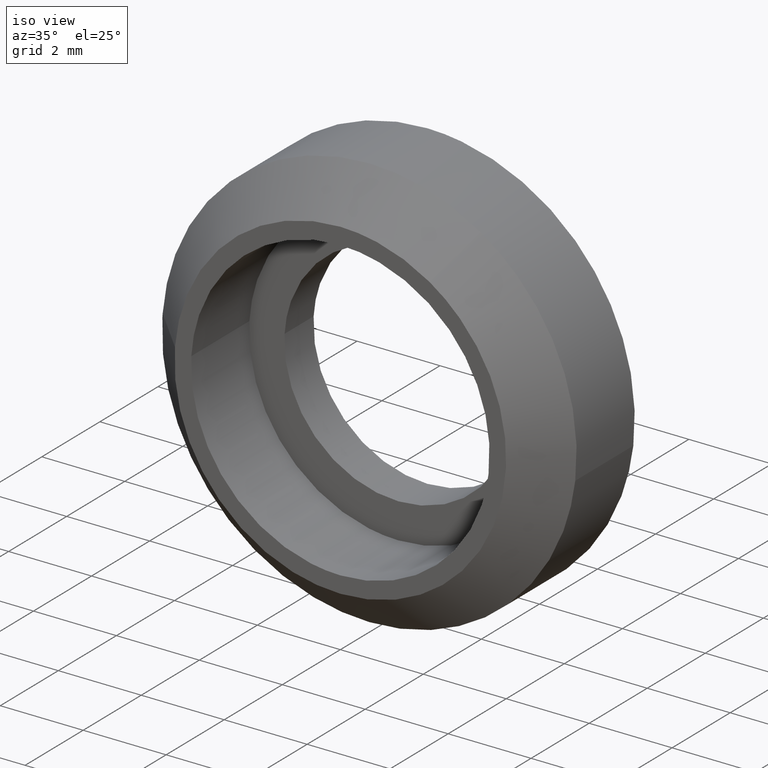
[diagram: clean part render]
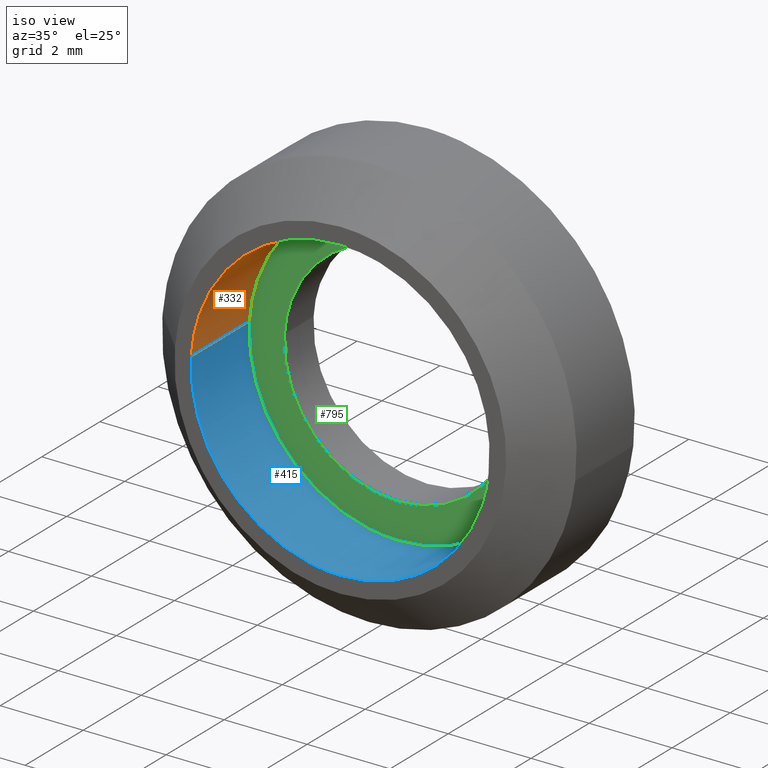
[diagram: same view with three faces highlighted in distinct colors, each labeled with its STEP entity id]
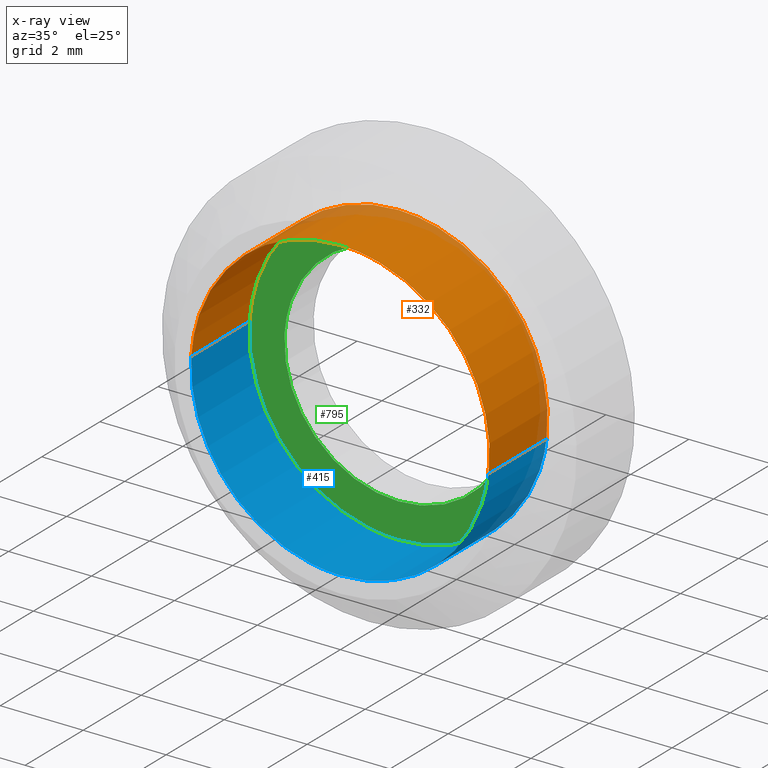
[diagram: x-ray of the same camera — body ghosted, the three highlighted faces saturated]
A machine part, iso view with three faces highlighted in distinct colors.
The next image is the same camera in x-ray (body ghosted, the three faces saturated) — at least one of them is partly hidden behind the body in this view.
Their STEP definitions:

[orange] entity #332 — the highlighted face is a freeform B-spline surface patch.
#230=CARTESIAN_POINT('',(3.574834294909198,0.050000000000000,-0.424923244764331));
#231=CARTESIAN_POINT('',(3.586995415614981,0.050000000000000,-0.322613023096720));
#232=CARTESIAN_POINT('',(3.593285274318721,0.050000000000000,-0.219774742325485));
#233=CARTESIAN_POINT('',(3.813060016644206,0.050000000000000,3.373510531993235));
#234=CARTESIAN_POINT('',(0.219774742325486,0.050000000000000,3.593285274318720));
#235=CARTESIAN_POINT('',(-3.373510531993235,0.050000000000000,3.813060016644206));
#236=CARTESIAN_POINT('',(-3.593285274318720,0.050000000000000,0.219774742325485));
#237=CARTESIAN_POINT('',(3.574834294909198,-2.051250000000001,-0.424923244764331));
#238=CARTESIAN_POINT('',(3.586995415614981,-2.051250000000000,-0.322613023096720));
#239=CARTESIAN_POINT('',(3.593285274318721,-2.051250000000000,-0.219774742325485));
#240=CARTESIAN_POINT('',(3.813060016644206,-2.051250000000001,3.373510531993235));
#241=CARTESIAN_POINT('',(0.219774742325486,-2.051250000000000,3.593285274318720));
#242=CARTESIAN_POINT('',(-3.373510531993235,-2.051250000000001,3.813060016644206));
#243=CARTESIAN_POINT('',(-3.593285274318720,-2.051250000000000,0.219774742325485));
#251=(BOUNDED_SURFACE()B_SPLINE_SURFACE(2,1,((#230,#237),(#231,#238),(#232,#239),(#233,#240),(#234,#241),(#235,#242),(#236,#243)),.UNSPECIFIED.,.F.,.F.,.U.)B_SPLINE_SURFACE_WITH_KNOTS((3,2,2,3),(2,2),(0.0,0.238587011926903,6.203262310099472,12.167937608272039),(0.0,2.101250000000000),.UNSPECIFIED.)GEOMETRIC_REPRESENTATION_ITEM()RATIONAL_B_SPLINE_SURFACE(((0.977505800795127,0.977505800795127),(0.988284271247462,0.988284271247462),(1.0,1.0),(0.707106781186548,0.707106781186548),(1.0,1.0),(0.707106781186548,0.707106781186548),(1.0,1.0)))REPRESENTATION_ITEM('')SURFACE());
#252=CARTESIAN_POINT('',(3.574834407510444,-3.545736E-015,-0.424922297459830));
#253=VERTEX_POINT('',#252);
#254=CARTESIAN_POINT('',(4.898425E-016,0.0,3.600000000000000));
#255=VERTEX_POINT('',#254);
#256=CARTESIAN_POINT('',(3.574834407510443,-3.545736E-015,-0.424922297459830));
#257=CARTESIAN_POINT('',(3.600000000000000,0.0,-0.213205873427639));
#258=CARTESIAN_POINT('',(3.600000000000001,0.0,0.0));
#259=CARTESIAN_POINT('',(3.600000000000000,0.0,3.600000000000000));
#260=CARTESIAN_POINT('',(4.898425E-016,0.0,3.600000000000000));
#268=(BOUNDED_CURVE()B_SPLINE_CURVE(2,(#256,#257,#258,#259,#260),.UNSPECIFIED.,.F.,.U.)B_SPLINE_CURVE_WITH_KNOTS((3,2,3),(0.229562563084858,0.250000000000000,0.500000000000000),.UNSPECIFIED.)CURVE()GEOMETRIC_REPRESENTATION_ITEM()RATIONAL_B_SPLINE_CURVE((0.956026929747286,0.976056053270509,1.0,0.707106781186547,1.0))REPRESENTATION_ITEM(''));
#269=EDGE_CURVE('',#253,#255,#268,.T.);
#270=ORIENTED_EDGE('',*,*,#269,.F.);
#271=CARTESIAN_POINT('',(3.574834406155133,-2.0,-0.424922308861975));
#272=VERTEX_POINT('',#271);
#273=CARTESIAN_POINT('',(3.574834407510444,-3.545736E-015,-0.424922297459830));
#274=CARTESIAN_POINT('',(3.574834406155133,-2.0,-0.424922308861975));
#275=QUASI_UNIFORM_CURVE('',1,(#273,#274),.UNSPECIFIED.,.F.,.U.);
#276=EDGE_CURVE('',#253,#272,#275,.T.);
#277=ORIENTED_EDGE('',*,*,#276,.T.);
#278=CARTESIAN_POINT('',(4.898425E-016,-2.0,3.600000000000000));
#279=VERTEX_POINT('',#278);
#280=CARTESIAN_POINT('',(3.574834406155132,-2.000000000000000,-0.424922308861975));
#281=CARTESIAN_POINT('',(3.600000000000001,-2.000000000000000,-0.213205884950325));
#282=CARTESIAN_POINT('',(3.600000000000001,-2.0,0.0));
#283=CARTESIAN_POINT('',(3.600000000000000,-2.0,3.600000000000000));
#284=CARTESIAN_POINT('',(4.898425E-016,-2.0,3.600000000000000));
#292=(BOUNDED_CURVE()B_SPLINE_CURVE(2,(#280,#281,#282,#283,#284),.UNSPECIFIED.,.F.,.U.)B_SPLINE_CURVE_WITH_KNOTS((3,2,3),(0.229562562006767,0.250000000000000,0.500000000000000),.UNSPECIFIED.)CURVE()GEOMETRIC_REPRESENTATION_ITEM()RATIONAL_B_SPLINE_CURVE((0.956026927634180,0.976056052007446,1.0,0.707106781186547,1.0))REPRESENTATION_ITEM(''));
#293=EDGE_CURVE('',#272,#279,#292,.T.);
#294=ORIENTED_EDGE('',*,*,#293,.T.);
#295=CARTESIAN_POINT('',(-3.593285493808216,-2.0,0.219771153645120));
#296=VERTEX_POINT('',#295);
#297=CARTESIAN_POINT('',(4.898425E-016,-2.0,3.600000000000000));
#298=CARTESIAN_POINT('',(-3.386545229384042,-2.000000000000000,3.600000000000000));
#299=CARTESIAN_POINT('',(-3.593285493808216,-1.999999999999999,0.219771153645120));
#307=(BOUNDED_CURVE()B_SPLINE_CURVE(2,(#297,#298,#299),.UNSPECIFIED.,.F.,.U.)B_SPLINE_CURVE_WITH_KNOTS((3,3),(0.500000000000000,0.739333134567656),.UNSPECIFIED.)CURVE()GEOMETRIC_REPRESENTATION_ITEM()RATIONAL_B_SPLINE_CURVE((1.0,0.719603791391064,0.976072411000232))REPRESENTATION_ITEM(''));
#308=EDGE_CURVE('',#279,#296,#307,.T.);
#309=ORIENTED_EDGE('',*,*,#308,.T.);
#310=CARTESIAN_POINT('',(-3.593285496484431,-7.393391E-015,0.219771109887959));
#311=VERTEX_POINT('',#310);
#312=CARTESIAN_POINT('',(-3.593285496484431,-7.393391E-015,0.219771109887959));
#313=CARTESIAN_POINT('',(-3.593285493808216,-2.0,0.219771153645120));
#314=QUASI_UNIFORM_CURVE('',1,(#312,#313),.UNSPECIFIED.,.F.,.U.);
#315=EDGE_CURVE('',#311,#296,#314,.T.);
#316=ORIENTED_EDGE('',*,*,#315,.F.);
#317=CARTESIAN_POINT('',(4.898425E-016,0.0,3.600000000000000));
#318=CARTESIAN_POINT('',(-3.386545270700687,0.0,3.600000000000001));
#319=CARTESIAN_POINT('',(-3.593285496484431,-7.393391E-015,0.219771109887959));
#327=(BOUNDED_CURVE()B_SPLINE_CURVE(2,(#317,#318,#319),.UNSPECIFIED.,.F.,.U.)B_SPLINE_CURVE_WITH_KNOTS((3,3),(0.500000000000000,0.739333136668842),.UNSPECIFIED.)CURVE()GEOMETRIC_REPRESENTATION_ITEM()RATIONAL_B_SPLINE_CURVE((1.0,0.719603788929372,0.976072415503480))REPRESENTATION_ITEM(''));
#328=EDGE_CURVE('',#255,#311,#327,.T.);
#329=ORIENTED_EDGE('',*,*,#328,.F.);
#330=EDGE_LOOP('',(#270,#277,#294,#309,#316,#329));
#331=FACE_OUTER_BOUND('',#330,.T.);
#332=ADVANCED_FACE('',(#331),#251,.F.);

[blue] entity #415 — the highlighted face is a freeform B-spline surface patch.
#252=CARTESIAN_POINT('',(3.574834407510444,-3.545736E-015,-0.424922297459830));
#253=VERTEX_POINT('',#252);
#271=CARTESIAN_POINT('',(3.574834406155133,-2.0,-0.424922308861975));
#272=VERTEX_POINT('',#271);
#273=CARTESIAN_POINT('',(3.574834407510444,-3.545736E-015,-0.424922297459830));
#274=CARTESIAN_POINT('',(3.574834406155133,-2.0,-0.424922308861975));
#275=QUASI_UNIFORM_CURVE('',1,(#273,#274),.UNSPECIFIED.,.F.,.U.);
#276=EDGE_CURVE('',#253,#272,#275,.T.);
#295=CARTESIAN_POINT('',(-3.593285493808216,-2.0,0.219771153645120));
#296=VERTEX_POINT('',#295);
#310=CARTESIAN_POINT('',(-3.593285496484431,-7.393391E-015,0.219771109887959));
#311=VERTEX_POINT('',#310);
#312=CARTESIAN_POINT('',(-3.593285496484431,-7.393391E-015,0.219771109887959));
#313=CARTESIAN_POINT('',(-3.593285493808216,-2.0,0.219771153645120));
#314=QUASI_UNIFORM_CURVE('',1,(#312,#313),.UNSPECIFIED.,.F.,.U.);
#315=EDGE_CURVE('',#311,#296,#314,.T.);
#333=CARTESIAN_POINT('',(-3.593285274318720,0.050000000000000,0.219774742325485));
#334=CARTESIAN_POINT('',(-3.813060016644205,0.050000000000000,-3.373510531993235));
#335=CARTESIAN_POINT('',(-0.219774742325485,0.050000000000000,-3.593285274318720));
#336=CARTESIAN_POINT('',(3.173556567022204,0.050000000000000,-3.800830308237098));
#337=CARTESIAN_POINT('',(3.574834294909198,0.050000000000000,-0.424923244764331));
#338=CARTESIAN_POINT('',(-3.593285274318720,-2.051250000000000,0.219774742325485));
#339=CARTESIAN_POINT('',(-3.813060016644205,-2.051250000000001,-3.373510531993235));
#340=CARTESIAN_POINT('',(-0.219774742325485,-2.051250000000000,-3.593285274318720));
#341=CARTESIAN_POINT('',(3.173556567022204,-2.051250000000001,-3.800830308237098));
#342=CARTESIAN_POINT('',(3.574834294909198,-2.051250000000001,-0.424923244764331));
#350=(BOUNDED_SURFACE()B_SPLINE_SURFACE(2,1,((#333,#338),(#334,#339),(#335,#340),(#336,#341),(#337,#342)),.UNSPECIFIED.,.F.,.F.,.U.)B_SPLINE_SURFACE_WITH_KNOTS((3,2,3),(2,2),(0.0,5.964675298172567,11.690763584418230),(0.0,2.101250000000000),.UNSPECIFIED.)GEOMETRIC_REPRESENTATION_ITEM()RATIONAL_B_SPLINE_SURFACE(((1.0,1.0),(0.707106781186548,0.707106781186548),(1.0,1.0),(0.718822509939086,0.718822509939086),(0.977505800795127,0.977505800795127)))REPRESENTATION_ITEM('')SURFACE());
#351=CARTESIAN_POINT('',(4.898425E-016,0.0,-3.600000000000000));
#352=VERTEX_POINT('',#351);
#353=CARTESIAN_POINT('',(4.898425E-016,0.0,-3.600000000000000));
#354=CARTESIAN_POINT('',(3.197429999944082,0.0,-3.600000000000001));
#355=CARTESIAN_POINT('',(3.574834407510444,-3.545736E-015,-0.424922297459830));
#363=(BOUNDED_CURVE()B_SPLINE_CURVE(2,(#353,#354,#355),.UNSPECIFIED.,.F.,.U.)B_SPLINE_CURVE_WITH_KNOTS((3,3),(0.0,0.229562563084858),.UNSPECIFIED.)CURVE()GEOMETRIC_REPRESENTATION_ITEM()RATIONAL_B_SPLINE_CURVE((1.0,0.731050727916038,0.956026929747286))REPRESENTATION_ITEM(''));
#364=EDGE_CURVE('',#352,#253,#363,.T.);
#365=ORIENTED_EDGE('',*,*,#364,.F.);
#366=CARTESIAN_POINT('',(-3.593285496484431,-7.393391E-015,0.219771109887959));
#367=CARTESIAN_POINT('',(-3.600000000000000,0.0,0.109988126563798));
#368=CARTESIAN_POINT('',(-3.600000000000000,0.0,0.0));
#369=CARTESIAN_POINT('',(-3.600000000000000,0.0,-3.600000000000000));
#370=CARTESIAN_POINT('',(4.898425E-016,0.0,-3.600000000000000));
#378=(BOUNDED_CURVE()B_SPLINE_CURVE(2,(#366,#367,#368,#369,#370),.UNSPECIFIED.,.F.,.U.)B_SPLINE_CURVE_WITH_KNOTS((3,2,3),(0.739333136668842,0.750000000000000,1.0),.UNSPECIFIED.)CURVE()GEOMETRIC_REPRESENTATION_ITEM()RATIONAL_B_SPLINE_CURVE((0.976072415503480,0.987502992257175,1.0,0.707106781186547,1.0))REPRESENTATION_ITEM(''));
#379=EDGE_CURVE('',#311,#352,#378,.T.);
#380=ORIENTED_EDGE('',*,*,#379,.F.);
#381=ORIENTED_EDGE('',*,*,#315,.T.);
#382=CARTESIAN_POINT('',(4.898425E-016,-2.0,-3.600000000000000));
#383=VERTEX_POINT('',#382);
#384=CARTESIAN_POINT('',(-3.593285493808216,-1.999999999999999,0.219771153645120));
#385=CARTESIAN_POINT('',(-3.600000000000000,-2.000000000000000,0.109988148503720));
#386=CARTESIAN_POINT('',(-3.600000000000000,-2.0,0.0));
#387=CARTESIAN_POINT('',(-3.600000000000000,-2.0,-3.600000000000000));
#388=CARTESIAN_POINT('',(4.898425E-016,-2.0,-3.600000000000000));
#396=(BOUNDED_CURVE()B_SPLINE_CURVE(2,(#384,#385,#386,#387,#388),.UNSPECIFIED.,.F.,.U.)B_SPLINE_CURVE_WITH_KNOTS((3,2,3),(0.739333134567656,0.750000000000000,1.0),.UNSPECIFIED.)CURVE()GEOMETRIC_REPRESENTATION_ITEM()RATIONAL_B_SPLINE_CURVE((0.976072411000232,0.987502989795483,1.0,0.707106781186547,1.0))REPRESENTATION_ITEM(''));
#397=EDGE_CURVE('',#296,#383,#396,.T.);
#398=ORIENTED_EDGE('',*,*,#397,.T.);
#399=CARTESIAN_POINT('',(4.898425E-016,-2.0,-3.600000000000000));
#400=CARTESIAN_POINT('',(3.197429979403713,-2.0,-3.600000000000001));
#401=CARTESIAN_POINT('',(3.574834406155132,-2.000000000000000,-0.424922308861975));
#409=(BOUNDED_CURVE()B_SPLINE_CURVE(2,(#399,#400,#401),.UNSPECIFIED.,.F.,.U.)B_SPLINE_CURVE_WITH_KNOTS((3,3),(0.0,0.229562562006767),.UNSPECIFIED.)CURVE()GEOMETRIC_REPRESENTATION_ITEM()RATIONAL_B_SPLINE_CURVE((1.0,0.731050729179102,0.956026927634180))REPRESENTATION_ITEM(''));
#410=EDGE_CURVE('',#383,#272,#409,.T.);
#411=ORIENTED_EDGE('',*,*,#410,.T.);
#412=ORIENTED_EDGE('',*,*,#276,.F.);
#413=EDGE_LOOP('',(#365,#380,#381,#398,#411,#412));
#414=FACE_OUTER_BOUND('',#413,.T.);
#415=ADVANCED_FACE('',(#414),#350,.F.);

[green] entity #795 — the highlighted face is a freeform B-spline surface patch.
#85=CARTESIAN_POINT('',(2.730776415759834,5.323928E-018,-0.324592309099363));
#86=VERTEX_POINT('',#85);
#92=CARTESIAN_POINT('',(4.898425E-016,0.0,2.750000000000000));
#93=VERTEX_POINT('',#92);
#94=CARTESIAN_POINT('',(2.730776415759835,5.323928E-018,-0.324592309099363));
#95=CARTESIAN_POINT('',(2.750000000000000,0.0,-0.162865401233412));
#96=CARTESIAN_POINT('',(2.750000000000000,0.0,0.0));
#97=CARTESIAN_POINT('',(2.750000000000000,0.0,2.750000000000000));
#98=CARTESIAN_POINT('',(4.898425E-016,0.0,2.750000000000000));
#106=(BOUNDED_CURVE()B_SPLINE_CURVE(2,(#94,#95,#96,#97,#98),.UNSPECIFIED.,.F.,.U.)B_SPLINE_CURVE_WITH_KNOTS((3,2,3),(0.229562587155464,0.250000000000000,0.500000000000000),.UNSPECIFIED.)CURVE()GEOMETRIC_REPRESENTATION_ITEM()RATIONAL_B_SPLINE_CURVE((0.956026976926705,0.976056081470978,1.0,0.707106781186548,1.0))REPRESENTATION_ITEM(''));
#107=EDGE_CURVE('',#86,#93,#106,.T.);
#109=CARTESIAN_POINT('',(-2.744870870186102,-5.204170E-017,0.167880630197805));
#110=VERTEX_POINT('',#109);
#111=CARTESIAN_POINT('',(4.898425E-016,0.0,2.750000000000000));
#112=CARTESIAN_POINT('',(-2.586944378359961,0.0,2.750000000000000));
#113=CARTESIAN_POINT('',(-2.744870870186103,-5.204170E-017,0.167880630197805));
#121=(BOUNDED_CURVE()B_SPLINE_CURVE(2,(#111,#112,#113),.UNSPECIFIED.,.F.,.U.)B_SPLINE_CURVE_WITH_KNOTS((3,3),(0.500000000000000,0.739333141618836),.UNSPECIFIED.)CURVE()GEOMETRIC_REPRESENTATION_ITEM()RATIONAL_B_SPLINE_CURVE((1.0,0.719603783130093,0.976072426112277))REPRESENTATION_ITEM(''));
#122=EDGE_CURVE('',#93,#110,#121,.T.);
#196=CARTESIAN_POINT('',(4.898425E-016,0.0,-2.750000000000000));
#197=VERTEX_POINT('',#196);
#198=CARTESIAN_POINT('',(-2.744870870186103,-5.204170E-017,0.167880630197805));
#199=CARTESIAN_POINT('',(-2.749999999999999,0.0,0.084018668309206));
#200=CARTESIAN_POINT('',(-2.750000000000000,0.0,0.0));
#201=CARTESIAN_POINT('',(-2.749999999999999,0.0,-2.750000000000000));
#202=CARTESIAN_POINT('',(4.898425E-016,0.0,-2.750000000000000));
#210=(BOUNDED_CURVE()B_SPLINE_CURVE(2,(#198,#199,#200,#201,#202),.UNSPECIFIED.,.F.,.U.)B_SPLINE_CURVE_WITH_KNOTS((3,2,3),(0.739333141618836,0.750000000000000,1.0),.UNSPECIFIED.)CURVE()GEOMETRIC_REPRESENTATION_ITEM()RATIONAL_B_SPLINE_CURVE((0.976072426112277,0.987502998056455,1.0,0.707106781186548,1.0))REPRESENTATION_ITEM(''));
#211=EDGE_CURVE('',#110,#197,#210,.T.);
#213=CARTESIAN_POINT('',(4.898425E-016,0.0,-2.750000000000000));
#214=CARTESIAN_POINT('',(2.442481600281129,0.0,-2.750000000000000));
#215=CARTESIAN_POINT('',(2.730776415759835,5.323928E-018,-0.324592309099363));
#223=(BOUNDED_CURVE()B_SPLINE_CURVE(2,(#213,#214,#215),.UNSPECIFIED.,.F.,.U.)B_SPLINE_CURVE_WITH_KNOTS((3,3),(0.0,0.229562587155464),.UNSPECIFIED.)CURVE()GEOMETRIC_REPRESENTATION_ITEM()RATIONAL_B_SPLINE_CURVE((1.0,0.731050699715569,0.956026976926705))REPRESENTATION_ITEM(''));
#224=EDGE_CURVE('',#197,#86,#223,.T.);
#252=CARTESIAN_POINT('',(3.574834407510444,-3.545736E-015,-0.424922297459830));
#253=VERTEX_POINT('',#252);
#254=CARTESIAN_POINT('',(4.898425E-016,0.0,3.600000000000000));
#255=VERTEX_POINT('',#254);
#256=CARTESIAN_POINT('',(3.574834407510443,-3.545736E-015,-0.424922297459830));
#257=CARTESIAN_POINT('',(3.600000000000000,0.0,-0.213205873427639));
#258=CARTESIAN_POINT('',(3.600000000000001,0.0,0.0));
#259=CARTESIAN_POINT('',(3.600000000000000,0.0,3.600000000000000));
#260=CARTESIAN_POINT('',(4.898425E-016,0.0,3.600000000000000));
#268=(BOUNDED_CURVE()B_SPLINE_CURVE(2,(#256,#257,#258,#259,#260),.UNSPECIFIED.,.F.,.U.)B_SPLINE_CURVE_WITH_KNOTS((3,2,3),(0.229562563084858,0.250000000000000,0.500000000000000),.UNSPECIFIED.)CURVE()GEOMETRIC_REPRESENTATION_ITEM()RATIONAL_B_SPLINE_CURVE((0.956026929747286,0.976056053270509,1.0,0.707106781186547,1.0))REPRESENTATION_ITEM(''));
#269=EDGE_CURVE('',#253,#255,#268,.T.);
#310=CARTESIAN_POINT('',(-3.593285496484431,-7.393391E-015,0.219771109887959));
#311=VERTEX_POINT('',#310);
#317=CARTESIAN_POINT('',(4.898425E-016,0.0,3.600000000000000));
#318=CARTESIAN_POINT('',(-3.386545270700687,0.0,3.600000000000001));
#319=CARTESIAN_POINT('',(-3.593285496484431,-7.393391E-015,0.219771109887959));
#327=(BOUNDED_CURVE()B_SPLINE_CURVE(2,(#317,#318,#319),.UNSPECIFIED.,.F.,.U.)B_SPLINE_CURVE_WITH_KNOTS((3,3),(0.500000000000000,0.739333136668842),.UNSPECIFIED.)CURVE()GEOMETRIC_REPRESENTATION_ITEM()RATIONAL_B_SPLINE_CURVE((1.0,0.719603788929372,0.976072415503480))REPRESENTATION_ITEM(''));
#328=EDGE_CURVE('',#255,#311,#327,.T.);
#351=CARTESIAN_POINT('',(4.898425E-016,0.0,-3.600000000000000));
#352=VERTEX_POINT('',#351);
#353=CARTESIAN_POINT('',(4.898425E-016,0.0,-3.600000000000000));
#354=CARTESIAN_POINT('',(3.197429999944082,0.0,-3.600000000000001));
#355=CARTESIAN_POINT('',(3.574834407510444,-3.545736E-015,-0.424922297459830));
#363=(BOUNDED_CURVE()B_SPLINE_CURVE(2,(#353,#354,#355),.UNSPECIFIED.,.F.,.U.)B_SPLINE_CURVE_WITH_KNOTS((3,3),(0.0,0.229562563084858),.UNSPECIFIED.)CURVE()GEOMETRIC_REPRESENTATION_ITEM()RATIONAL_B_SPLINE_CURVE((1.0,0.731050727916038,0.956026929747286))REPRESENTATION_ITEM(''));
#364=EDGE_CURVE('',#352,#253,#363,.T.);
#366=CARTESIAN_POINT('',(-3.593285496484431,-7.393391E-015,0.219771109887959));
#367=CARTESIAN_POINT('',(-3.600000000000000,0.0,0.109988126563798));
#368=CARTESIAN_POINT('',(-3.600000000000000,0.0,0.0));
#369=CARTESIAN_POINT('',(-3.600000000000000,0.0,-3.600000000000000));
#370=CARTESIAN_POINT('',(4.898425E-016,0.0,-3.600000000000000));
#378=(BOUNDED_CURVE()B_SPLINE_CURVE(2,(#366,#367,#368,#369,#370),.UNSPECIFIED.,.F.,.U.)B_SPLINE_CURVE_WITH_KNOTS((3,2,3),(0.739333136668842,0.750000000000000,1.0),.UNSPECIFIED.)CURVE()GEOMETRIC_REPRESENTATION_ITEM()RATIONAL_B_SPLINE_CURVE((0.976072415503480,0.987502992257175,1.0,0.707106781186547,1.0))REPRESENTATION_ITEM(''));
#379=EDGE_CURVE('',#311,#352,#378,.T.);
#778=CARTESIAN_POINT('',(-3.959552635598656,0.0,-3.959639892733097));
#779=CARTESIAN_POINT('',(-3.959552635598656,0.0,3.959639635241032));
#780=CARTESIAN_POINT('',(3.959574522424220,0.0,-3.959639892733097));
#781=CARTESIAN_POINT('',(3.959574522424220,0.0,3.959639635241032));
#782=B_SPLINE_SURFACE_WITH_KNOTS('',1,1,((#778,#780),(#779,#781)),.UNSPECIFIED.,.F.,.F.,.U.,(2,2),(2,2),(0.0,7.919279527974129),(0.0,7.919127158022875),.UNSPECIFIED.);
#783=ORIENTED_EDGE('',*,*,#364,.T.);
#784=ORIENTED_EDGE('',*,*,#269,.T.);
#785=ORIENTED_EDGE('',*,*,#328,.T.);
#786=ORIENTED_EDGE('',*,*,#379,.T.);
#787=EDGE_LOOP('',(#783,#784,#785,#786));
#788=FACE_OUTER_BOUND('',#787,.T.);
#789=ORIENTED_EDGE('',*,*,#122,.F.);
#790=ORIENTED_EDGE('',*,*,#107,.F.);
#791=ORIENTED_EDGE('',*,*,#224,.F.);
#792=ORIENTED_EDGE('',*,*,#211,.F.);
#793=EDGE_LOOP('',(#789,#790,#791,#792));
#794=FACE_BOUND('',#793,.T.);
#795=ADVANCED_FACE('',(#788,#794),#782,.F.);